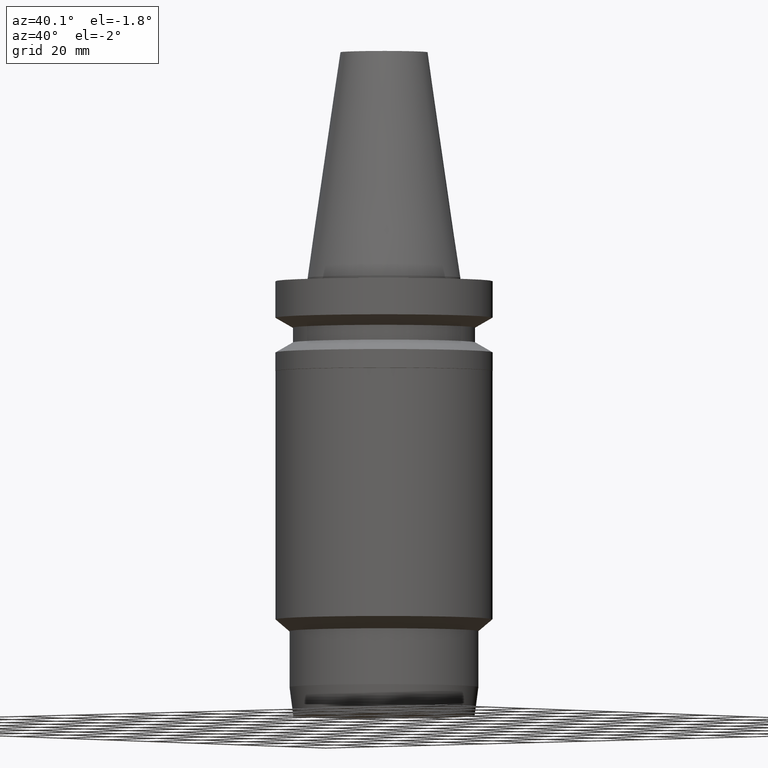
[diagram: clean part render]
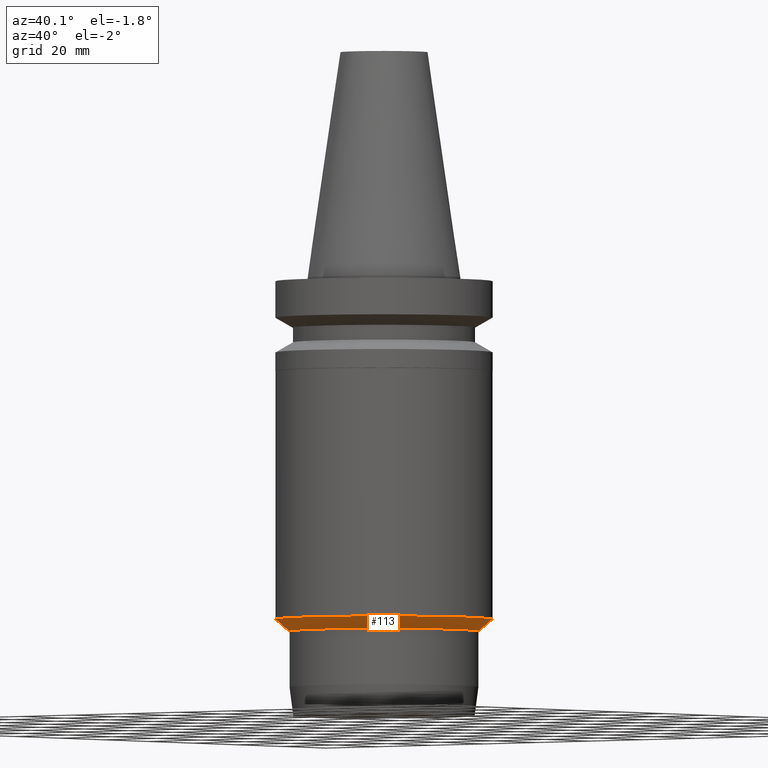
[diagram: same view with one face highlighted and labeled with its STEP entity id]
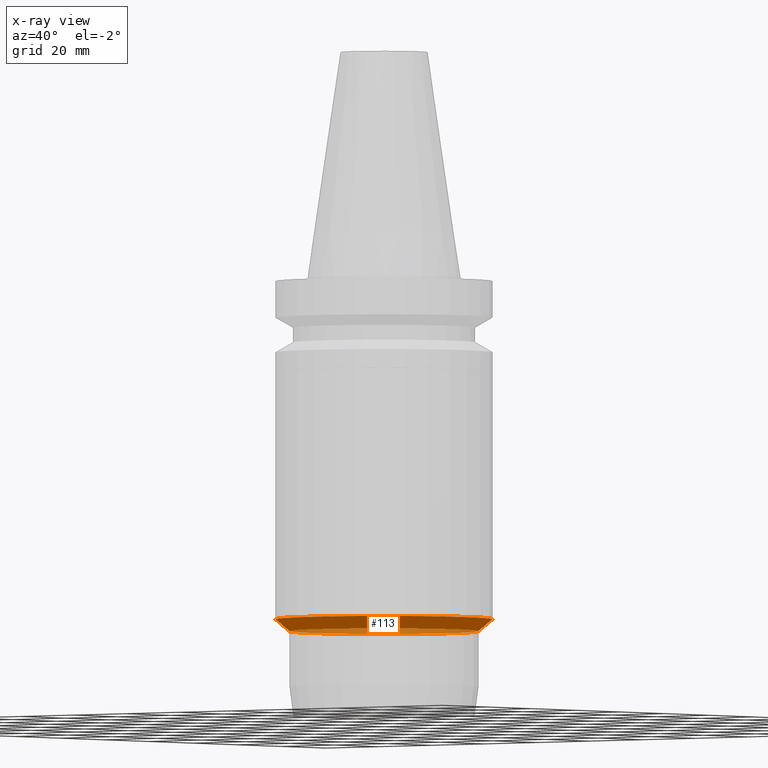
[diagram: x-ray of the same camera — body ghosted, the highlighted face saturated]
A machine part, auxiliary view. The second image highlights one B-rep face of the part: STEP entity #113.
The next image is the same camera in x-ray: the body ghosted, the highlighted face saturated — about 25% of this face is hidden behind the body in this view.
In plain terms, the highlighted conical surface has half-angle 48.987 deg.
Its self-contained STEP definition (entity closure, byte-faithful):
#60=EDGE_CURVE('Unnamed[1]',#155,#155,#156,.T.);
#95=EDGE_CURVE('Unnamed[1]',#209,#209,#210,.T.);
#113=ADVANCED_FACE('Unnamed[1]',(#236,#237),#238,.T.);
#155=VERTEX_POINT('',#282);
#156=CIRCLE('',#283,27.4999999999989);
#209=VERTEX_POINT('',#349);
#210=CIRCLE('',#350,31.4500000000005);
#236=FACE_BOUND('',#383,.T.);
#237=FACE_BOUND('',#384,.T.);
#238=CONICAL_SURFACE('',#385,29.4749999999997,0.854987653868246);
#282=CARTESIAN_POINT('',(6.27587521720903E-015,27.4999999999989,-102.492820323028));
#283=AXIS2_PLACEMENT_3D('',#428,#429,#430);
#349=CARTESIAN_POINT('',(6.06552779486206E-015,31.4500000000005,-99.0575862213517));
#350=AXIS2_PLACEMENT_3D('',#486,#487,#488);
#383=EDGE_LOOP('',(#516));
#384=EDGE_LOOP('',(#517));
#385=AXIS2_PLACEMENT_3D('',#518,#519,#520);
#428=CARTESIAN_POINT('',(6.27587521720903E-015,-5.19497943985536E-016,-102.492820323028));
#429=DIRECTION('',(6.12323399573677E-017,-4.59983100815415E-016,-1.0));
#430=DIRECTION('',(2.33386888730046E-032,1.0,-4.59983100815415E-016));
#486=CARTESIAN_POINT('',(6.06552779486206E-015,1.06065169013022E-015,-99.0575862213517));
#487=DIRECTION('',(6.12323399573677E-017,-4.59983100815415E-016,-1.0));
#488=DIRECTION('',(2.33386888730046E-032,1.0,-4.59983100815415E-016));
#516=ORIENTED_EDGE('',*,*,#60,.F.);
#517=ORIENTED_EDGE('',*,*,#95,.T.);
#518=CARTESIAN_POINT('',(6.17070150603554E-015,2.70576873072344E-016,-100.77520327219));
#519=DIRECTION('',(-6.12323399573677E-017,4.59983100815415E-016,1.0));
#520=DIRECTION('',(2.33386888730046E-032,1.0,-4.59983100815415E-016));